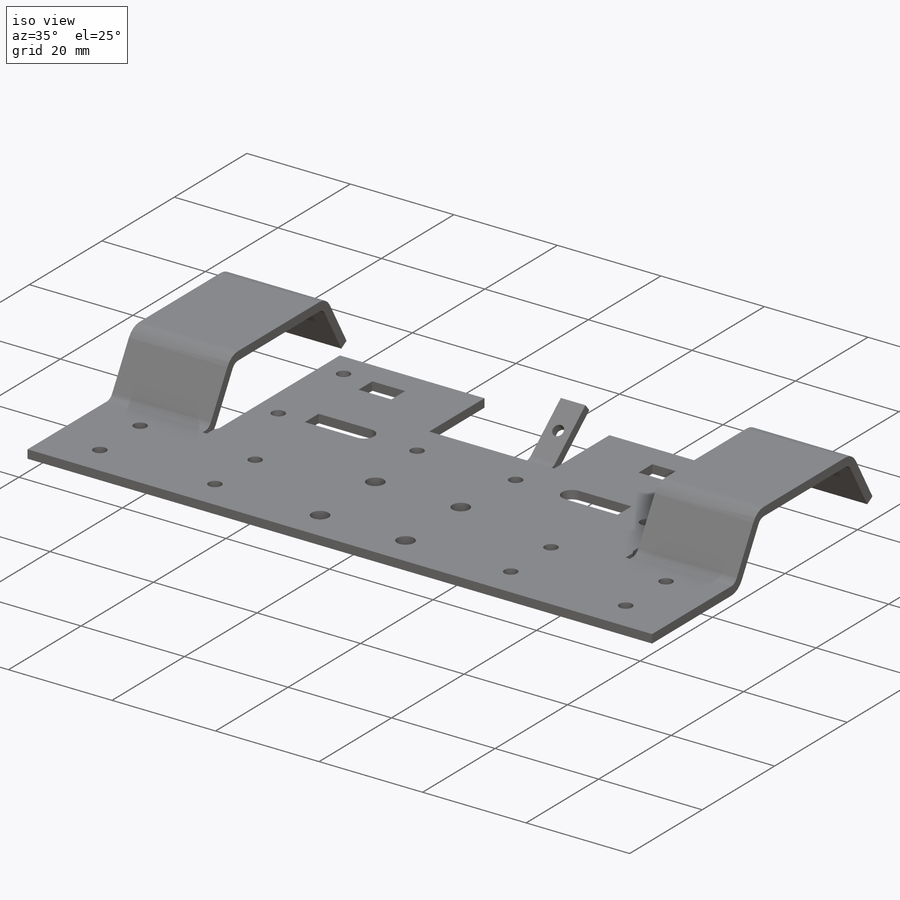
[diagram: iso view]
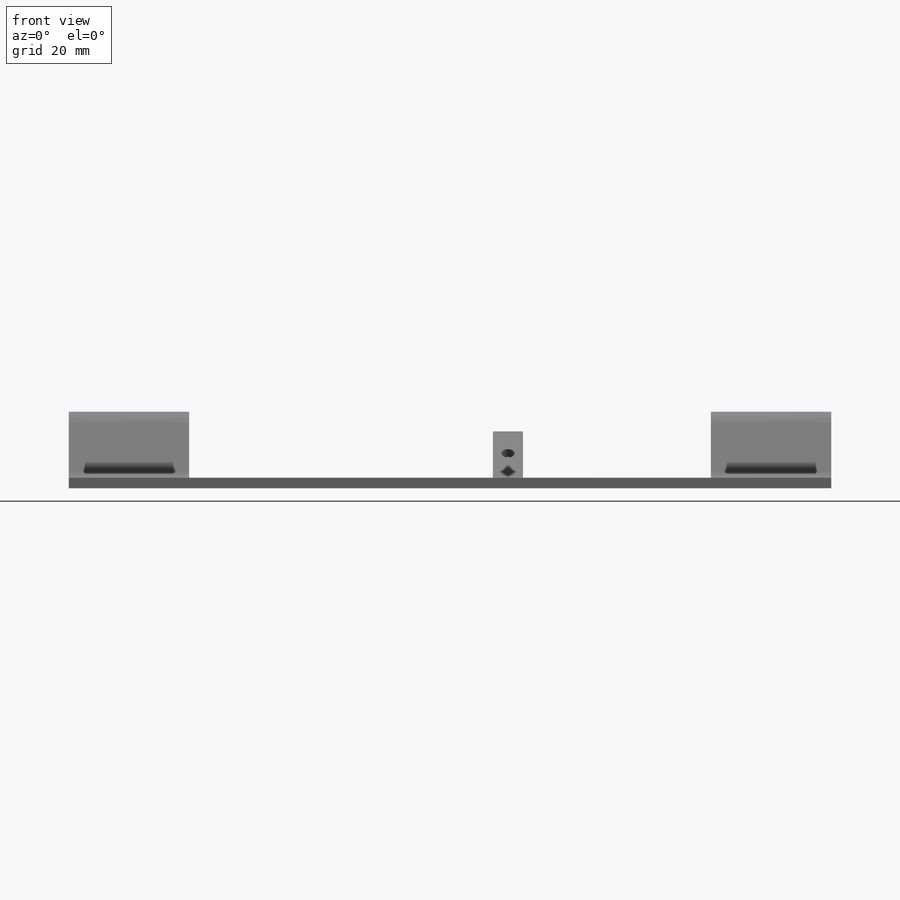
[diagram: front view]
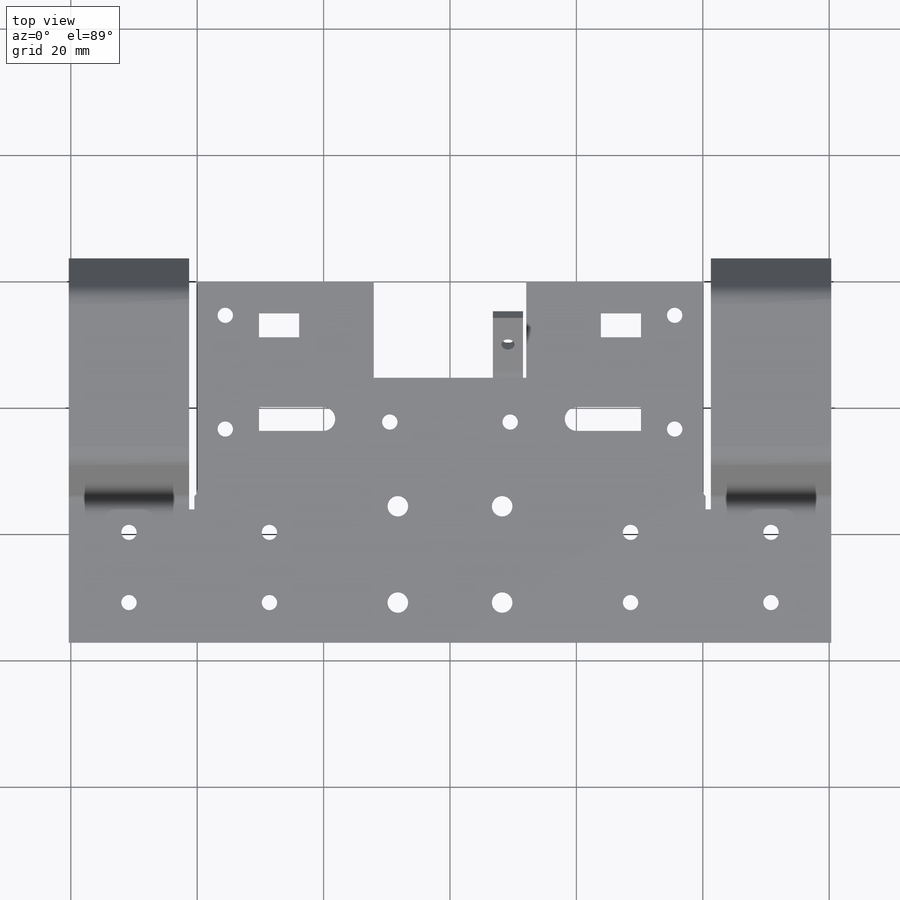
[diagram: top view]
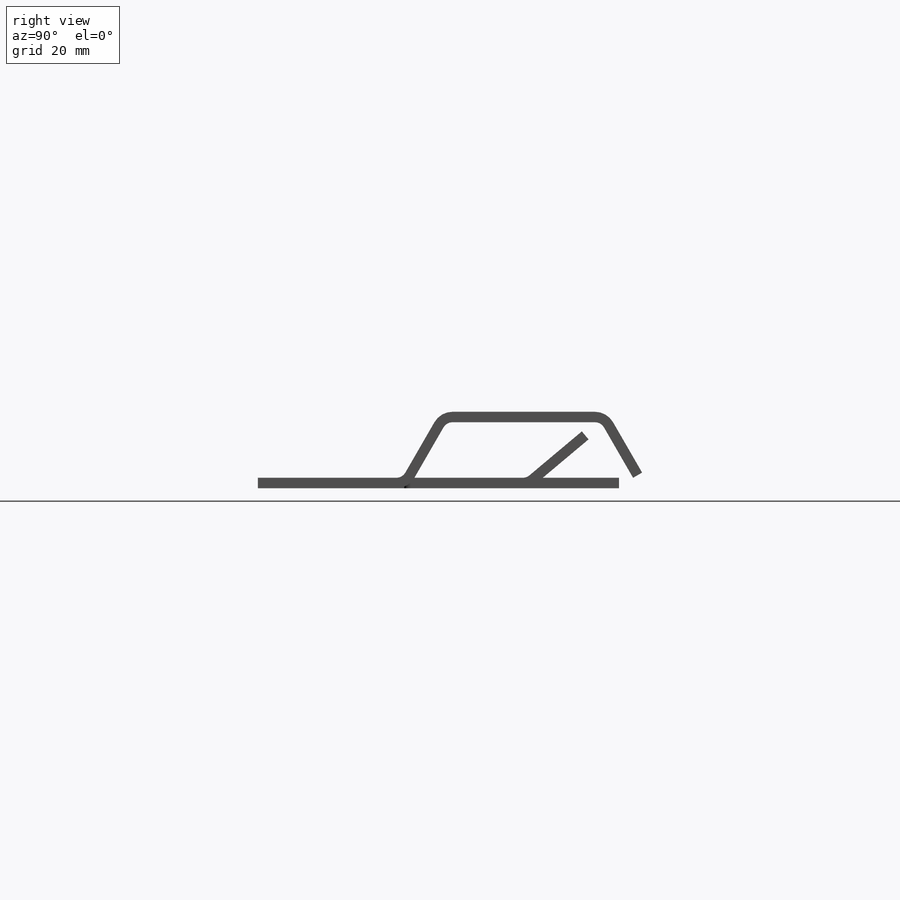
[diagram: right view]
SOLIDWORKS PART (.sldprt)
format: sldprt  version: not decoded by parser v0  size: 1,652,224 bytes
history: native  units: mm
features: sketch x22, cut_extrude x4, sheet_metal_op x4, hole x3, material x1, extrude x1, fillet x1 + 7 further entries (+15 scaffold rows collapsed; 1 parser-record rows omitted)
feature tree (59):
  scaffold x15  (default folders/planes/origin — collapsed)
  material  "6061 Alloy"
  sketch  "Sketch1"  dims[D1=57.15mm D2=34.29mm D3=20.32mm D4=120.65mm]
  extrude  "Extrude1"  Depth=1.651mm Thickness=1.651mm
  hole  "#2 Clearance Hole1"  Diameter=2.4384mm Depth=1.651mm
  sketch  "3DSketch1"  dims[D1=18.0mm D2=5.334mm D3=4.445mm D4=4.445mm]
  sketch  "Sketch2"  dims[hole-wizard template sketch: 60 standard entries collapsed; hole parameters kept: c18.Thru Hole Depth=1.651mm]
  sketch  "Sketch8"  dims[c1.D5=3.81mm c1.D6=3.81mm c1.D7=3.81mm c2.D5=1.651mm c2.D1=6.35mm c2.D2=3.81mm c2.D3=8.509mm c2.D4=1.5875mm c2.D6=15.24mm c2.D7=7.62mm c3.D5=10.16mm]
  cut_extrude  "Extrude3"  [1 undecoded]
  sketch  "Sketch13"
  sketch  "Sketch16"  dims[D1=24.13mm D2=15.24mm]
  cut_extrude  "Extrude4"  [1 undecoded]
  fillet  "Fillet1"  Radius=1.27mm
  sheet_metal_op  "Sheet-Metal3"
  sketch  "Sharp-Sketch2"  dims[D1=0.0mm]
  sketch  "Flat-Sketch2"  dims[D1=0.0mm]
  sketch  "Sketch31"  dims[c1.D1=0.508mm c1.D2=4.7625mm c2.D1=1.651mm c2.D4=40.0deg c2.D5=1.0 c2.D8=0.8255mm c2.D9=0.8255mm c3.D1=1.651mm c3.D2=500.0mm c3.D3=0.0mm c3.D6=10.0mm c3.D7=11.43mm]
  sketch  "Sketch32"  dims[D1=2.0574mm]
  cut_extrude  "Extrude6"  [1 undecoded]
  hole  "#4 Clearance Hole1"  Diameter=3.2639mm Depth=1.651mm
  sketch  "3DSketch2"  dims[c1.D1=~8.423622mm c1.D2=16.51mm c2.D2=~6.672696mm c2.D5=12.7mm c2.D3=~2.538007mm c3.D2=3.175mm c3.D4=~5.310336mm c3.D5=8.255mm c4.D4=~7.932164mm c4.D1=8.255mm c5.D1=8.255mm c5.D2=15.24mm c5.D3=~3.959325mm c5.D5=3.175mm c5.D4=8.255mm c6.D3=34.925mm c6.D5=3.81mm c7.D3=6.35mm]
  sketch  "Sketch3"  dims[hole-wizard template sketch: 60 standard entries collapsed; hole parameters kept: c18.Thru Hole Depth=1.651mm]
  sheet_metal_op  "Edge-Flange4"
  sketch  "Sketch49"
  sketch  "Sketch50"  dims[c1.EdgeBend6=0.0 c1.D1=1.651mm c1.D4=60.0deg c1.D5=3.0 c1.D8=0.8255mm c1.D9=0.8255mm c1.EdgeBend7=0.0 c2.D1=1.651mm c2.D4=60.0deg c2.D5=4.0 c2.D8=0.8255mm c2.D9=0.8255mm c3.D1=1.651mm c3.D2=500.0mm c3.D3=0.0mm c3.D6=10.0mm c3.D7=10.16mm c3.D8=1.0mm]
  sheet_metal_op  "Edge-Flange5"
  sketch  "Sketch55"
  sketch  "Sketch56"  dims[c1.EdgeBend8=0.0 c1.D1=1.651mm c1.D4=60.0deg c1.D5=5.0 c1.D8=0.8255mm c1.D9=0.8255mm c1.EdgeBend9=0.0 c2.D1=1.651mm c2.D4=60.0deg c2.D5=6.0 c2.D8=0.8255mm c2.D9=0.8255mm c3.D1=1.651mm c3.D2=500.0mm c3.D3=0.0mm c3.D6=10.0mm c3.D7=23.495mm c3.D8=1.0mm]
  sheet_metal_op  "Edge-Flange6"
  sketch  "Sketch61"
  sketch  "Sketch62"  dims[c1.EdgeBend10=0.0 c1.D1=1.651mm c1.D4=60.0deg c1.D5=7.0 c1.D8=0.8255mm c1.D9=0.8255mm c1.EdgeBend11=0.0 c2.D1=1.651mm c2.D4=60.0deg c2.D5=8.0 c2.D8=0.8255mm c2.D9=0.8255mm c3.D1=1.651mm c3.D2=500.0mm c3.D3=0.0mm c3.D6=10.0mm c3.D7=10.16mm c3.D8=1.0mm]
  hole  "#2 Clearance Hole2"  Diameter=2.4384mm Depth=6.35mm
  sketch  "3DSketch3"  dims[D1=9.525mm D2=9.525mm D3=6.35mm D4=11.1125mm D5=31.75mm D6=31.75mm D7=50.8mm D8=50.8mm D9=34.925mm]
  sketch  "Sketch65"  dims[hole-wizard template sketch: 47 standard entries collapsed; hole parameters kept: c15.Hole Depth=6.35mm c15.D3=~14.816244mm c15.Drill Angle=118.0deg]
  "Flat-Pattern3"
  sketch  "Bend-Lines3"
  "Flatten-<EdgeBend6>1"
  "Flatten-<EdgeBend7>1"
  "Flatten-<EdgeBend8>1"
  "Flatten-<EdgeBend9>1"
  "Flatten-<EdgeBend10>1"
  "Flatten-<EdgeBend11>1"
  parser-record x1  (decoder bookkeeping rows leaked as tree rows — omitted from the tree; the rows remain in map.json)
  sketch  "Sketch64"  dims[D1=1.27mm D2=2.032mm]
  cut_extrude  "Extrude12"  [1 undecoded]
decode coverage: 22 of 35 modeling features carry decoded parameters; 7 rows unclassified (native names shown)
note: ~ marks probable driven/reference dimensions
note: 4 parameter values undecoded
summary: no parameter record found for 4 features
note: suppression state not decoded; provenance and decode notes live in map.json
